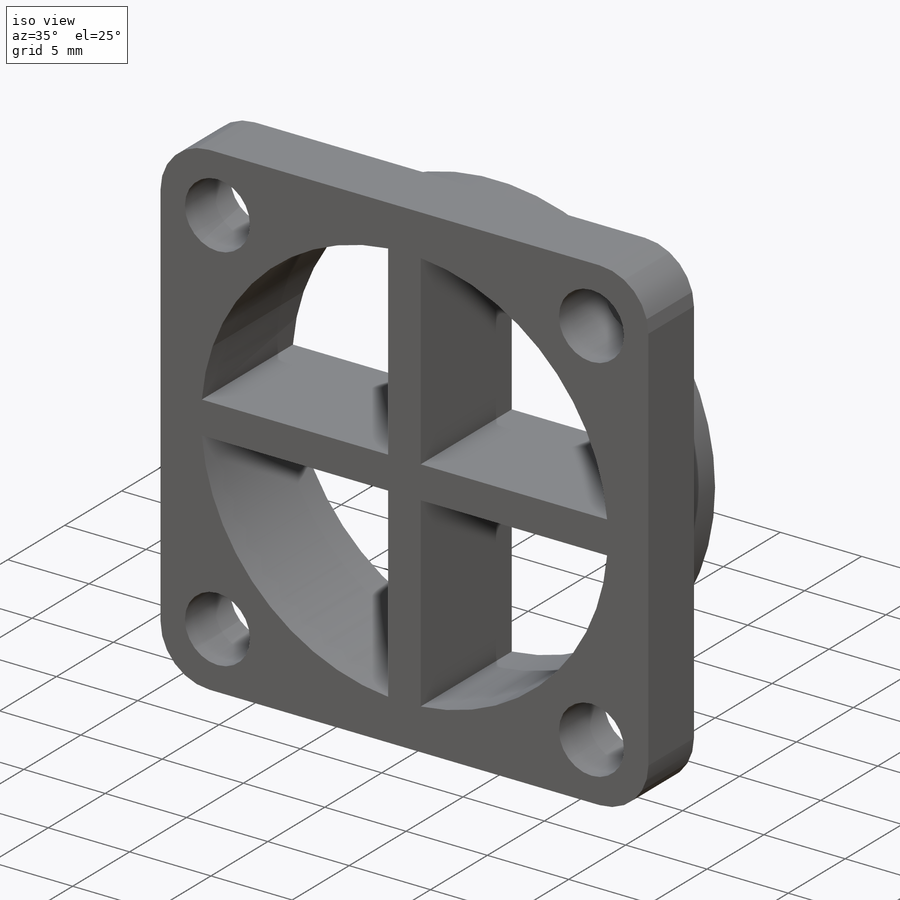
[diagram: iso view]
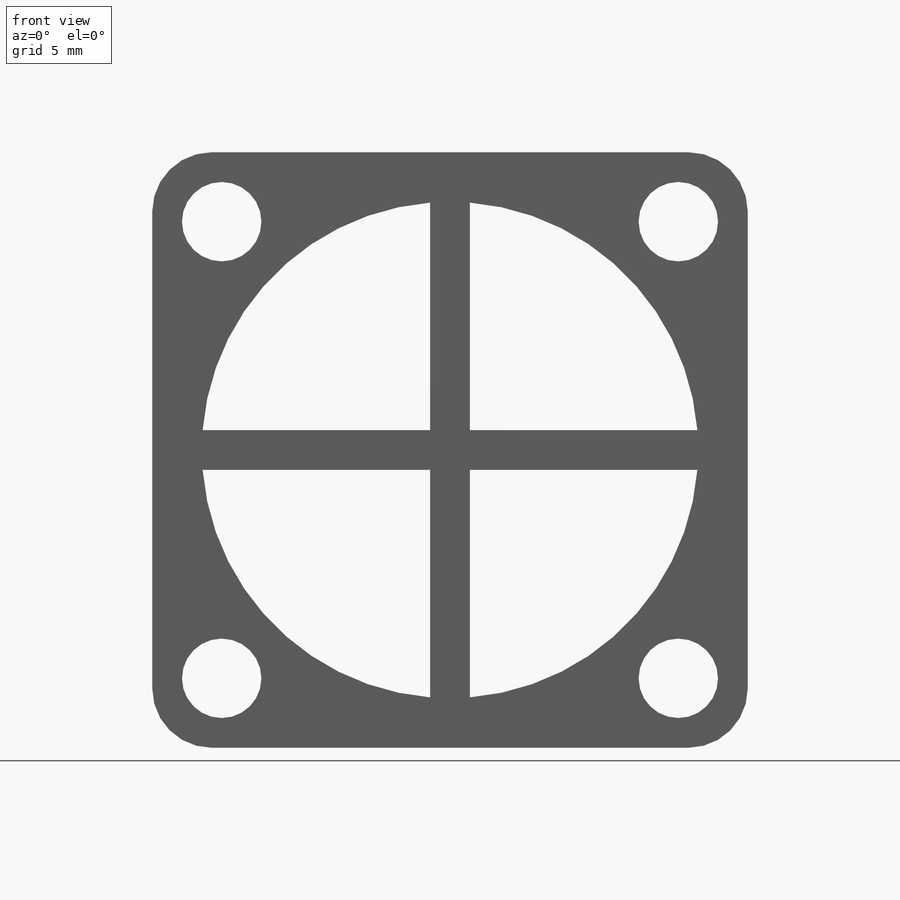
[diagram: front view]
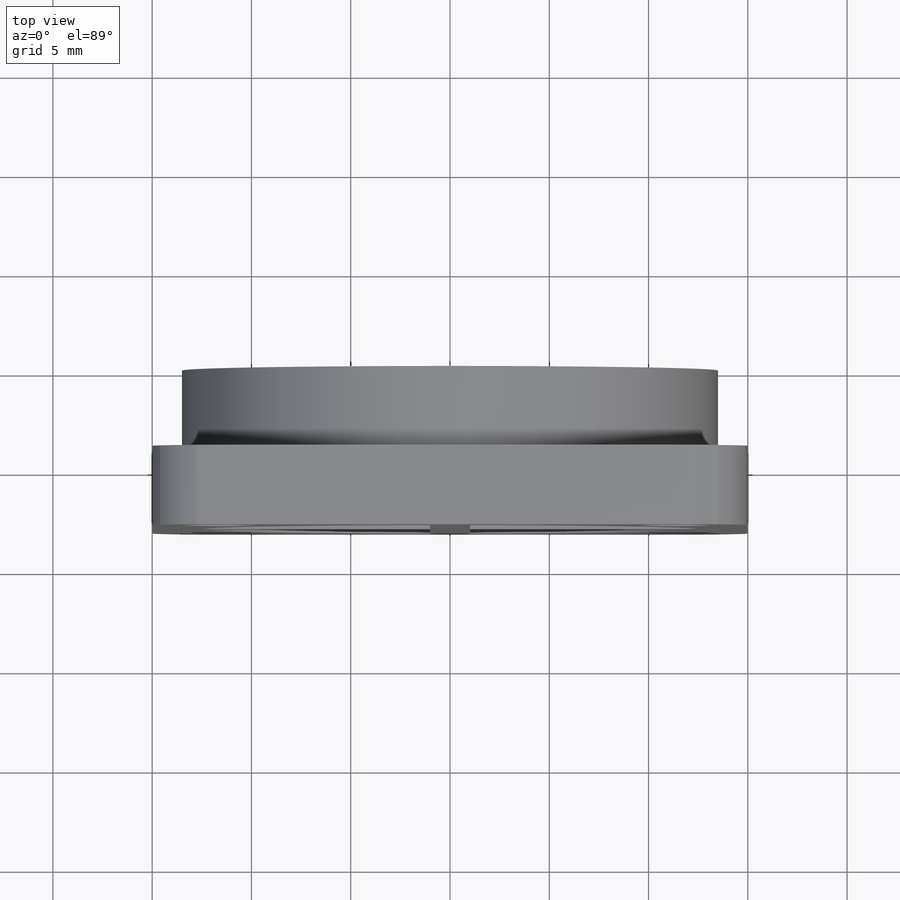
[diagram: top view]
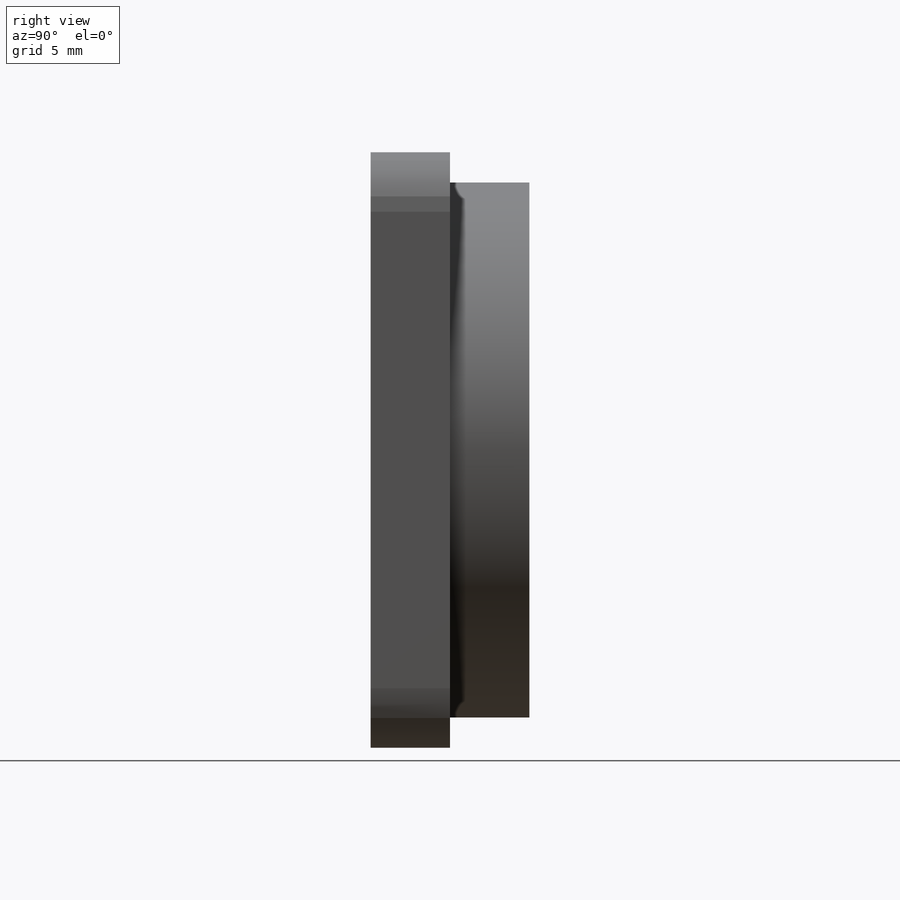
[diagram: right view]
SOLIDWORKS PART (.sldprt)
format: sldprt  version: not decoded by parser v0  size: 221,696 bytes
history: native  units: mm
features: sketch x5, mirror x4, extrude x2, cut_extrude x2, material x1, fillet x1 (+13 scaffold rows collapsed)
feature tree (28):
  scaffold x13  (default folders/planes/origin — collapsed)
  material  "Material <not specified>"
  sketch  "Sketch1"  dims[D1=27.0mm]
  extrude  "Boss-Extrude1"  Depth=4mm
  sketch  "Sketch2"  dims[D1=30.0mm D2=30.0mm]
  extrude  "Boss-Extrude2"  Depth=4mm
  fillet  "Fillet1"  Radius=3mm
  sketch  "Sketch3"  dims[D1=25.0mm D2=2.0mm D3=2.0mm D4=25.0mm]
  sketch  "Sketch4"
  cut_extrude  "Cut-Extrude1"  Depth=8mm
  mirror  "Mirror1"
  mirror  "Mirror2"
  sketch  "Sketch5"  dims[D1=4.0mm D2=11.5mm D3=11.5mm]
  cut_extrude  "Cut-Extrude2"  Depth=8mm
  mirror  "Mirror3"
  mirror  "Mirror4"
decode coverage: 9 of 14 modeling features carry decoded parameters
note: suppression state not decoded; provenance and decode notes live in map.json
